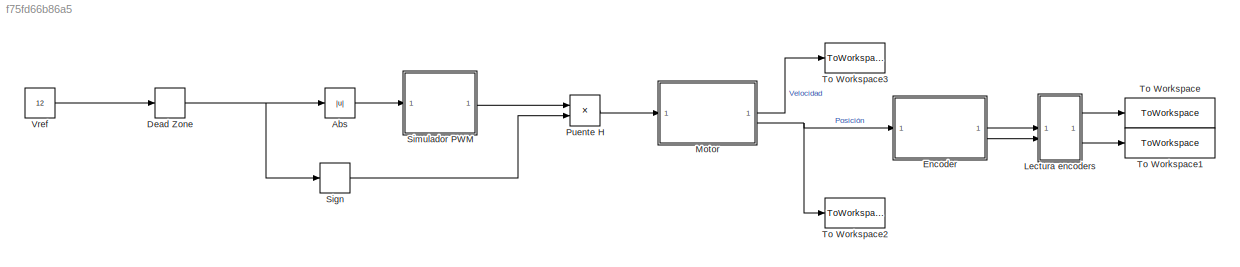
MODEL slx_f75fd66b86a5
KIND model
CONFIG AbsTol = auto
CONFIG EnableMultiTasking = off
CONFIG FixedStep = auto
CONFIG MaxStep = 1e-5
CONFIG MinStep = auto
CONFIG RelTol = 1e-5
CONFIG SampleTimeConstraint = Unconstrained
CONFIG SolverName = ode45
CONFIG StartTime = 0.0
CONFIG StopTime = 3
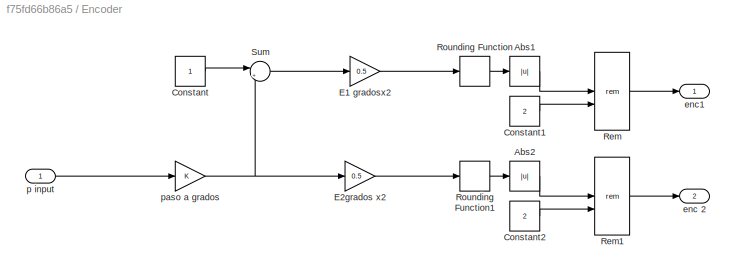
BLOCK [SubSystem]  Encoder
BLOCK [Abs]  Encoder/Abs1
  SaturateOnIntegerOverflow = off
BLOCK [Abs]  Encoder/Abs2
  SaturateOnIntegerOverflow = off
BLOCK [Constant]  Encoder/Constant
BLOCK [Constant]  Encoder/Constant1
  Value = 2
BLOCK [Constant]  Encoder/Constant2
  Value = 2
BLOCK [Gain]  Encoder/E1 gradosx2
  Gain = 0.5
BLOCK [Gain]  Encoder/E2grados x2
  Gain = 0.5
BLOCK [Math]  Encoder/Rem
  Operator = rem
BLOCK [Math]  Encoder/Rem1
  Operator = rem
BLOCK [Rounding]  Encoder/Rounding Function
BLOCK [Rounding]  Encoder/Rounding Function1
BLOCK [Sum]  Encoder/Sum
  Inputs = |++
BLOCK [Outport]  Encoder/enc 2
  Port = 2
BLOCK [Outport]  Encoder/enc1
BLOCK [Inport]  Encoder/p input
BLOCK [Gain]  Encoder/paso a grados
BLOCK [Abs] Abs
  SaturateOnIntegerOverflow = off
BLOCK [DeadZone] Dead Zone
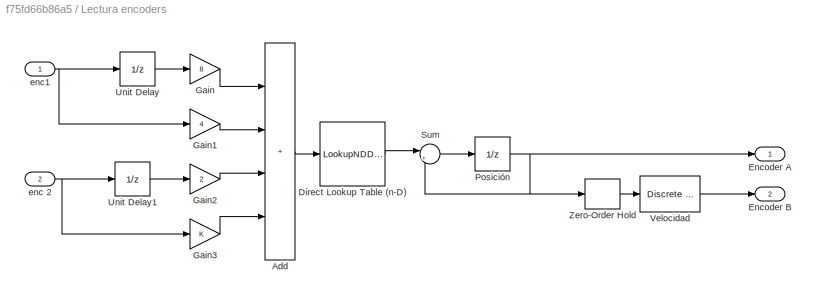
BLOCK [SubSystem] Lectura encoders
BLOCK [Sum] Lectura encoders/Add
  IconShape = rectangular
  Inputs = ++++
  OutDataTypeStr = double
BLOCK [LookupNDDirect] Lectura encoders/Direct Lookup Table (n-D)
  NumberOfTableDimensions = 1
  Table = [0,-1,1,0,1,0,0,-1,-1,0,0,1,0,1,-1,0]
BLOCK [Outport] Lectura encoders/Encoder A
BLOCK [Outport] Lectura encoders/Encoder B
  Port = 2
BLOCK [Gain] Lectura encoders/Gain
  Gain = 8
BLOCK [Gain] Lectura encoders/Gain1
  Gain = 4
BLOCK [Gain] Lectura encoders/Gain2
  Gain = 2
BLOCK [Gain] Lectura encoders/Gain3
BLOCK [UnitDelay] Lectura encoders/Posición
  HasFrameUpgradeWarning = on
  SampleTime = -1
BLOCK [Sum] Lectura encoders/Sum
  Inputs = |++
BLOCK [UnitDelay] Lectura encoders/Unit Delay
  HasFrameUpgradeWarning = on
  SampleTime = -1
BLOCK [UnitDelay] Lectura encoders/Unit Delay1
  HasFrameUpgradeWarning = on
  SampleTime = -1
BLOCK [Reference] Lectura encoders/Velocidad  REF=simulink/Discrete/Discrete Derivative
  SourceBlock = simulink/Discrete/Discrete Derivative
  SourceType = Discrete Derivative
BLOCK [ZeroOrderHold] Lectura encoders/Zero-Order Hold
  SampleTime = 0.0001
BLOCK [Inport] Lectura encoders/enc 2
  Port = 2
BLOCK [Inport] Lectura encoders/enc1
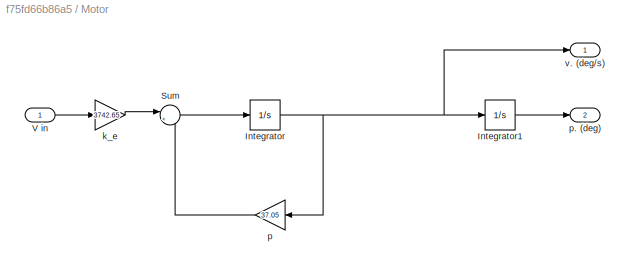
BLOCK [SubSystem] Motor
BLOCK [Integrator] Motor/Integrator
BLOCK [Integrator] Motor/Integrator1
BLOCK [Sum] Motor/Sum
  Inputs = |+-
BLOCK [Inport] Motor/V in
BLOCK [Gain] Motor/k_e
  Gain = 3742.65
BLOCK [Gain] Motor/p
  Gain = 37.05
  NameLocation = top
BLOCK [Outport] Motor/p. (deg)
  Port = 2
BLOCK [Outport] Motor/v. (deg//s)
BLOCK [Product] Puente H
BLOCK [Signum] Sign
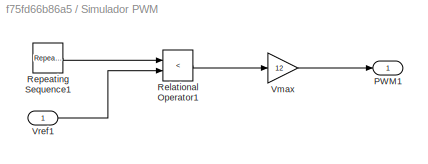
BLOCK [SubSystem] Simulador PWM
BLOCK [Outport] Simulador PWM/PWM1
BLOCK [RelationalOperator] Simulador PWM/Relational Operator1
  InputSameDT = off
  Operator = <
  OutDataTypeStr = boolean
  RndMeth = Simplest
BLOCK [Reference] Simulador PWM/Repeating Sequence1  REF=simulink/Sources/Repeating
Sequence
  SourceBlock = simulink/Sources/Repeating\nSequence
  SourceType = Repeating table
BLOCK [Gain] Simulador PWM/Vmax
  Gain = 12
BLOCK [Inport] Simulador PWM/Vref1
BLOCK [ToWorkspace] To Workspace
  FixptAsFi = on
  MaxDataPoints = inf
  SampleTime = -1
  SaveFormat = Timeseries
  VariableName = Posicion_enc
BLOCK [ToWorkspace] To Workspace1
  FixptAsFi = on
  MaxDataPoints = inf
  SampleTime = -1
  SaveFormat = Timeseries
  VariableName = Velocidad_enc
BLOCK [ToWorkspace] To Workspace2
  MaxDataPoints = inf
  SampleTime = -1
  SaveFormat = Timeseries
  VariableName = Posicion
BLOCK [ToWorkspace] To Workspace3
  MaxDataPoints = inf
  SampleTime = -1
  SaveFormat = Timeseries
  VariableName = Velocidad
BLOCK [Constant] Vref
  Value = 12
LINE  Encoder/Abs1:1 ->  Encoder/Rem:1
LINE  Encoder/Abs2:1 ->  Encoder/Rem1:1
LINE  Encoder/Constant1:1 ->  Encoder/Rem:2
LINE  Encoder/Constant2:1 ->  Encoder/Rem1:2
LINE  Encoder/Constant:1 ->  Encoder/Sum:1
LINE  Encoder/E1 gradosx2:1 ->  Encoder/Rounding Function:1
LINE  Encoder/E2grados x2:1 ->  Encoder/Rounding Function1:1
LINE  Encoder/Rem1:1 ->  Encoder/enc 2:1
LINE  Encoder/Rem:1 ->  Encoder/enc1:1
LINE  Encoder/Rounding Function1:1 ->  Encoder/Abs2:1
LINE  Encoder/Rounding Function:1 ->  Encoder/Abs1:1
LINE  Encoder/Sum:1 ->  Encoder/E1 gradosx2:1
LINE  Encoder/p input:1 ->  Encoder/paso a grados:1
NET  Encoder/paso a grados:1 ->  Encoder/E2grados x2:1,  Encoder/Sum:2
LINE  Encoder:1 -> Lectura encoders:1
LINE  Encoder:2 -> Lectura encoders:2
LINE Abs:1 -> Simulador PWM:1
NET Dead Zone:1 -> Abs:1, Sign:1
LINE Lectura encoders/Add:1 -> Lectura encoders/Direct Lookup Table (n-D):1
LINE Lectura encoders/Direct Lookup Table (n-D):1 -> Lectura encoders/Sum:1
LINE Lectura encoders/Gain1:1 -> Lectura encoders/Add:2
LINE Lectura encoders/Gain2:1 -> Lectura encoders/Add:3
LINE Lectura encoders/Gain3:1 -> Lectura encoders/Add:4
LINE Lectura encoders/Gain:1 -> Lectura encoders/Add:1
NET Lectura encoders/Posición:1 -> Lectura encoders/Encoder A:1, Lectura encoders/Sum:2, Lectura encoders/Zero-Order Hold:1
LINE Lectura encoders/Sum:1 -> Lectura encoders/Posición:1
LINE Lectura encoders/Unit Delay1:1 -> Lectura encoders/Gain2:1
LINE Lectura encoders/Unit Delay:1 -> Lectura encoders/Gain:1
LINE Lectura encoders/Velocidad:1 -> Lectura encoders/Encoder B:1
LINE Lectura encoders/Zero-Order Hold:1 -> Lectura encoders/Velocidad:1
NET Lectura encoders/enc 2:1 -> Lectura encoders/Gain3:1, Lectura encoders/Unit Delay1:1
NET Lectura encoders/enc1:1 -> Lectura encoders/Gain1:1, Lectura encoders/Unit Delay:1
LINE Lectura encoders:1 -> To Workspace:1
LINE Lectura encoders:2 -> To Workspace1:1
LINE Motor/Integrator1:1 -> Motor/p. (deg):1
NET Motor/Integrator:1 -> Motor/Integrator1:1, Motor/p:1, Motor/v. (deg//s):1
LINE Motor/Sum:1 -> Motor/Integrator:1
LINE Motor/V in:1 -> Motor/k_e:1
LINE Motor/k_e:1 -> Motor/Sum:1
LINE Motor/p:1 -> Motor/Sum:2
LINE Motor:1 -> To Workspace3:1
NET Motor:2 ->  Encoder:1, To Workspace2:1
LINE Puente H:1 -> Motor:1
LINE Sign:1 -> Puente H:2
LINE Simulador PWM/Relational Operator1:1 -> Simulador PWM/Vmax:1
LINE Simulador PWM/Repeating Sequence1:1 -> Simulador PWM/Relational Operator1:1
LINE Simulador PWM/Vmax:1 -> Simulador PWM/PWM1:1
LINE Simulador PWM/Vref1:1 -> Simulador PWM/Relational Operator1:2
LINE Simulador PWM:1 -> Puente H:1
LINE Vref:1 -> Dead Zone:1
note: NET lines group one-source signal fan-out (src -> all destinations, sorted); 1:1 wires keep LINE
